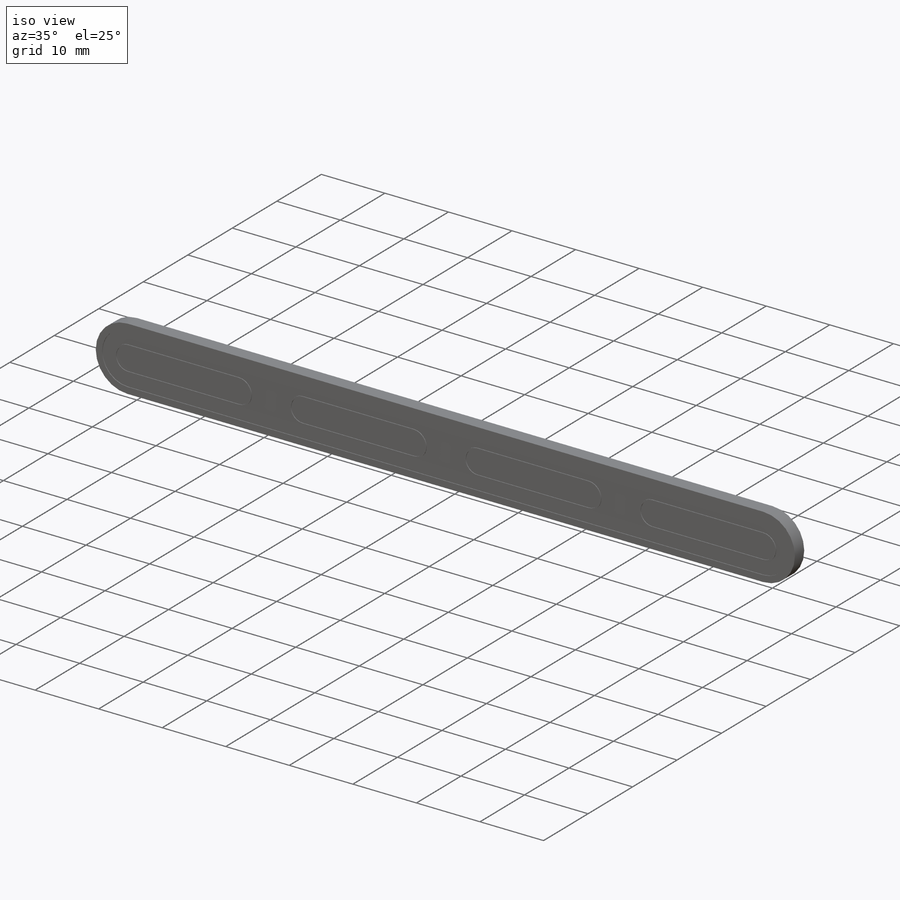
[diagram: iso view]
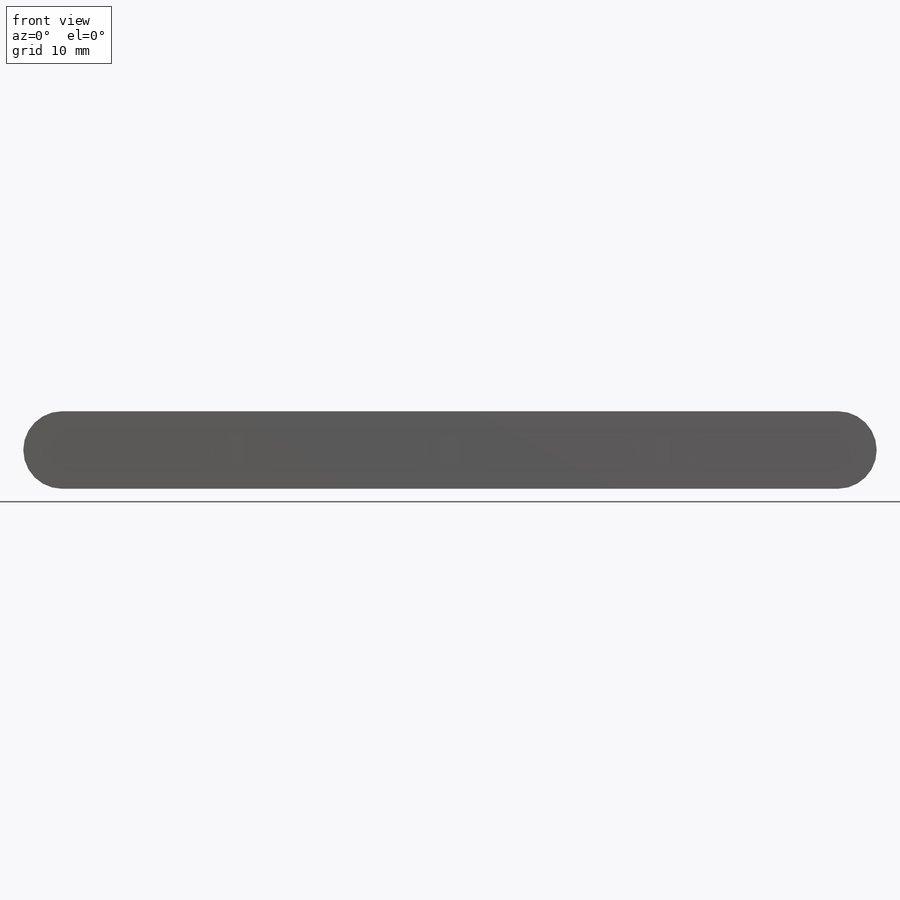
[diagram: front view]
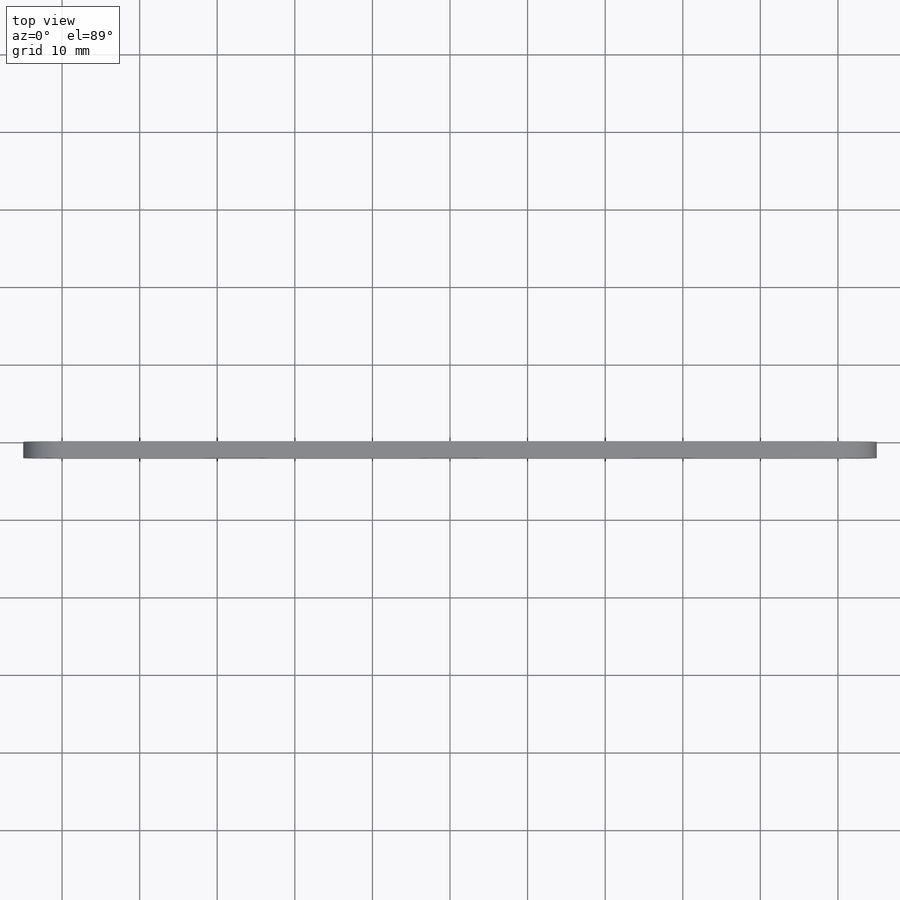
[diagram: top view]
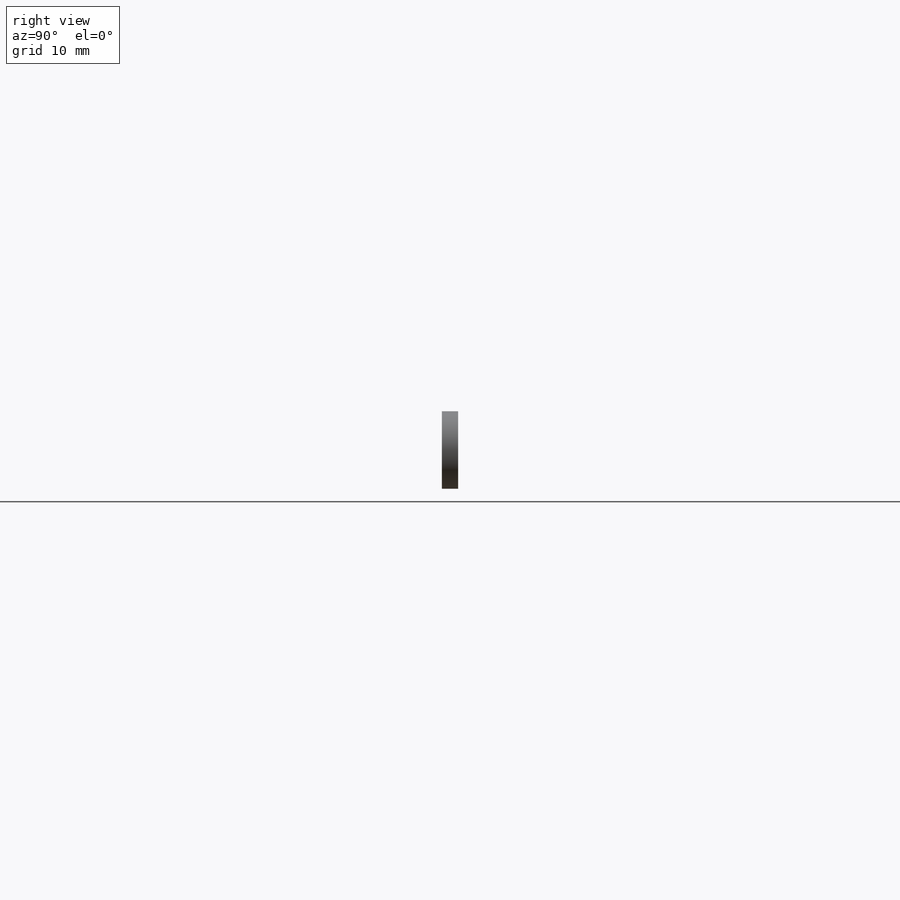
[diagram: right view]
SOLIDWORKS PART (.sldprt)
format: sldprt  version: not decoded by parser v0  size: 117,248 bytes
history: native  units: mm
features: sketch x3, extrude x3, material x1 (+13 scaffold rows collapsed)
feature tree (20):
  scaffold x13  (default folders/planes/origin — collapsed)
  material  "Material <not specified>"
  sketch  "Sketch1"
  extrude  "Extrude1"  Depth=2mm
  sketch  "Sketch2"  dims[c1.D2=~3.278237mm c1.D1=1.0mm c2.D2=1.0mm c2.D3=~1.138659mm]
  extrude  "Extrude2"  Depth=0.1mm
  sketch  "Sketch3"  dims[c1.D3=2.0mm c1.D6=1.8mm c1.D1=2.0mm c1.D2=2.0mm c2.D3=10.0mm c2.D4=10.0mm c2.D5=10.0mm]
  extrude  "Extrude3"  Depth=0.1mm
decode coverage: 5 of 6 modeling features carry decoded parameters
note: ~ marks probable driven/reference dimensions
note: suppression state not decoded; provenance and decode notes live in map.json
